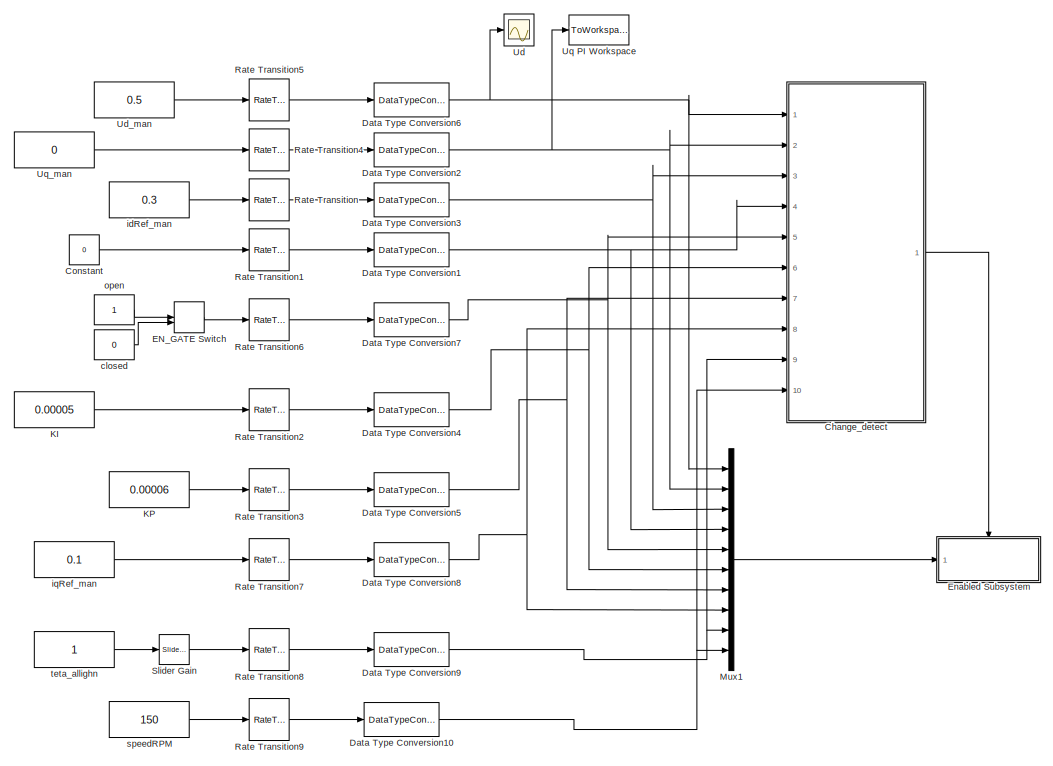
[diagram: root canvas - part 1/2, right side, full height]
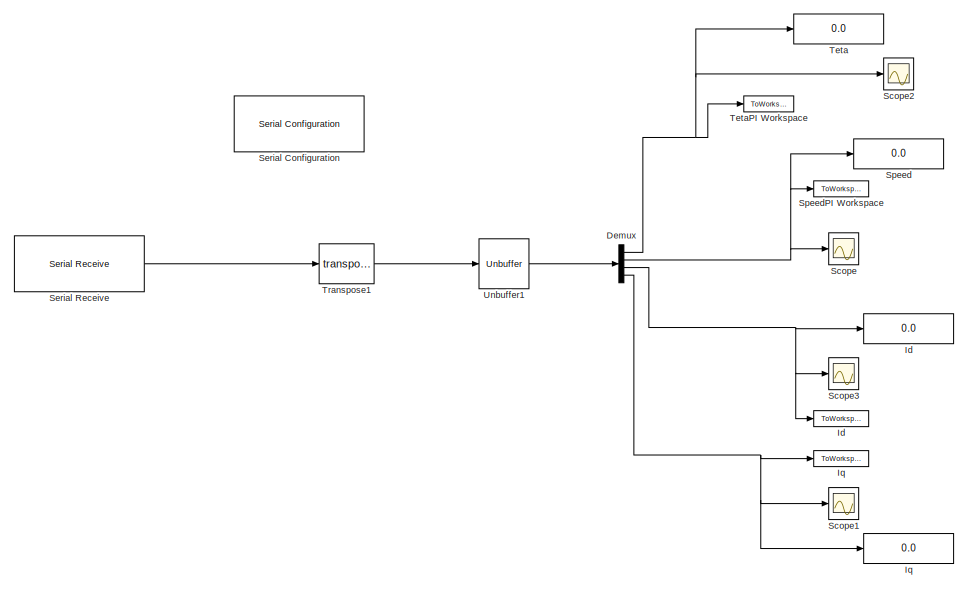
[diagram: root canvas - part 2/2, left side, full height]
MODEL slx_180a6de45c20
KIND model
CONFIG AbsTol = auto
CONFIG EnableMultiTasking = on
CONFIG FixedStep = auto
CONFIG MaxStep = auto
CONFIG MinStep = auto
CONFIG RelTol = 1e-3
CONFIG SampleTimeConstraint = Unconstrained
CONFIG Solver = FixedStepDiscrete
CONFIG SolverName = FixedStepDiscrete
CONFIG StartTime = 0.0
CONFIG StopTime = Inf
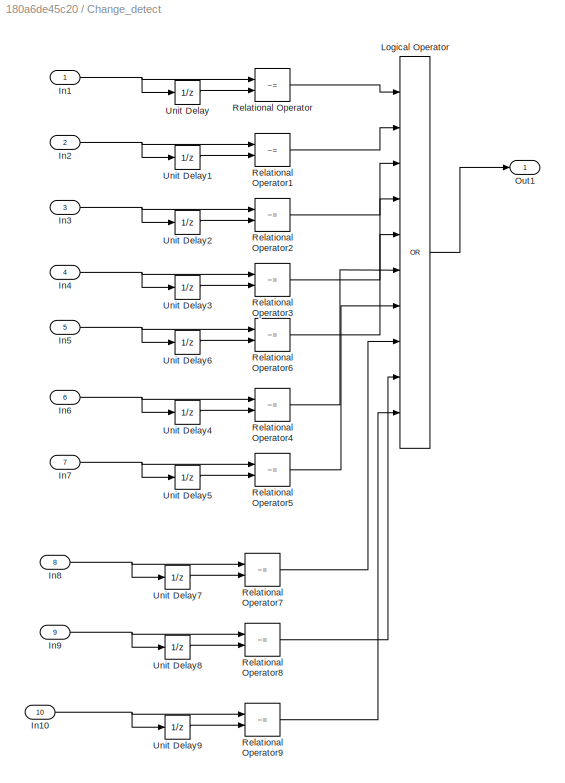
BLOCK [SubSystem] Change_detect
  Ports = [10, 1]
  RequestExecContextInheritance = off
BLOCK [Inport] Change_detect/In1
  IconDisplay = Port number
BLOCK [Inport] Change_detect/In10
  IconDisplay = Port number
  Port = 10
BLOCK [Inport] Change_detect/In2
  IconDisplay = Port number
  Port = 2
BLOCK [Inport] Change_detect/In3
  IconDisplay = Port number
  Port = 3
BLOCK [Inport] Change_detect/In4
  IconDisplay = Port number
  Port = 4
BLOCK [Inport] Change_detect/In5 
  IconDisplay = Port number
  Port = 5
BLOCK [Inport] Change_detect/In6
  IconDisplay = Port number
  Port = 6
BLOCK [Inport] Change_detect/In7
  IconDisplay = Port number
  Port = 7
BLOCK [Inport] Change_detect/In8
  IconDisplay = Port number
  Port = 8
BLOCK [Inport] Change_detect/In9
  IconDisplay = Port number
  Port = 9
BLOCK [Logic] Change_detect/Logical Operator
  AllPortsSameDT = off
  Inputs = 10
  Operator = OR
  OutDataTypeStr = boolean
  Ports = [10, 1]
BLOCK [Outport] Change_detect/Out1
  IconDisplay = Port number
BLOCK [RelationalOperator] Change_detect/Relational Operator
  InputSameDT = off
  Operator = ~=
  OutDataTypeStr = boolean
  Ports = [2, 1]
BLOCK [RelationalOperator] Change_detect/Relational Operator1
  InputSameDT = off
  Operator = ~=
  OutDataTypeStr = boolean
  Ports = [2, 1]
BLOCK [RelationalOperator] Change_detect/Relational Operator2
  InputSameDT = off
  Operator = ~=
  OutDataTypeStr = boolean
  Ports = [2, 1]
BLOCK [RelationalOperator] Change_detect/Relational Operator3
  InputSameDT = off
  Operator = ~=
  OutDataTypeStr = boolean
  Ports = [2, 1]
BLOCK [RelationalOperator] Change_detect/Relational Operator4
  InputSameDT = off
  Operator = ~=
  OutDataTypeStr = boolean
  Ports = [2, 1]
BLOCK [RelationalOperator] Change_detect/Relational Operator5
  InputSameDT = off
  Operator = ~=
  OutDataTypeStr = boolean
  Ports = [2, 1]
BLOCK [RelationalOperator] Change_detect/Relational Operator6
  InputSameDT = off
  Operator = ~=
  OutDataTypeStr = boolean
  Ports = [2, 1]
BLOCK [RelationalOperator] Change_detect/Relational Operator7
  InputSameDT = off
  Operator = ~=
  OutDataTypeStr = boolean
  Ports = [2, 1]
BLOCK [RelationalOperator] Change_detect/Relational Operator8
  InputSameDT = off
  Operator = ~=
  OutDataTypeStr = boolean
  Ports = [2, 1]
BLOCK [RelationalOperator] Change_detect/Relational Operator9
  InputSameDT = off
  Operator = ~=
  OutDataTypeStr = boolean
  Ports = [2, 1]
BLOCK [UnitDelay] Change_detect/Unit Delay
  InitialCondition = 0.5
  InputProcessing = Elements as channels (sample based)
  SampleTime = -1
BLOCK [UnitDelay] Change_detect/Unit Delay1
  InitialCondition = 0.5
  InputProcessing = Elements as channels (sample based)
  SampleTime = -1
BLOCK [UnitDelay] Change_detect/Unit Delay2
  InitialCondition = 0.5
  InputProcessing = Elements as channels (sample based)
  SampleTime = -1
BLOCK [UnitDelay] Change_detect/Unit Delay3
  InitialCondition = 0.5
  InputProcessing = Elements as channels (sample based)
  SampleTime = -1
BLOCK [UnitDelay] Change_detect/Unit Delay4
  InitialCondition = 0.5
  InputProcessing = Elements as channels (sample based)
  SampleTime = -1
BLOCK [UnitDelay] Change_detect/Unit Delay5
  InitialCondition = 0.5
  InputProcessing = Elements as channels (sample based)
  SampleTime = -1
BLOCK [UnitDelay] Change_detect/Unit Delay6
  InitialCondition = 0.5
  InputProcessing = Elements as channels (sample based)
  SampleTime = -1
BLOCK [UnitDelay] Change_detect/Unit Delay7
  InitialCondition = 0.5
  InputProcessing = Elements as channels (sample based)
  SampleTime = -1
BLOCK [UnitDelay] Change_detect/Unit Delay8
  InitialCondition = 0.5
  InputProcessing = Elements as channels (sample based)
  SampleTime = -1
BLOCK [UnitDelay] Change_detect/Unit Delay9
  InitialCondition = 0.5
  InputProcessing = Elements as channels (sample based)
  SampleTime = -1
BLOCK [Constant] Constant
  Value = 0
BLOCK [DataTypeConversion] Data Type Conversion1
  OutDataTypeStr = single
  RndMeth = Floor
  SaturateOnIntegerOverflow = off
BLOCK [DataTypeConversion] Data Type Conversion10
  OutDataTypeStr = single
  RndMeth = Floor
  SaturateOnIntegerOverflow = off
BLOCK [DataTypeConversion] Data Type Conversion2
  OutDataTypeStr = single
  RndMeth = Floor
  SaturateOnIntegerOverflow = off
BLOCK [DataTypeConversion] Data Type Conversion3
  OutDataTypeStr = single
  RndMeth = Floor
  SaturateOnIntegerOverflow = off
BLOCK [DataTypeConversion] Data Type Conversion4
  OutDataTypeStr = single
  RndMeth = Floor
  SaturateOnIntegerOverflow = off
BLOCK [DataTypeConversion] Data Type Conversion5
  OutDataTypeStr = single
  RndMeth = Floor
  SaturateOnIntegerOverflow = off
BLOCK [DataTypeConversion] Data Type Conversion6
  OutDataTypeStr = single
  RndMeth = Floor
  SaturateOnIntegerOverflow = off
BLOCK [DataTypeConversion] Data Type Conversion7
  OutDataTypeStr = single
  RndMeth = Floor
  SaturateOnIntegerOverflow = off
BLOCK [DataTypeConversion] Data Type Conversion8
  OutDataTypeStr = single
  RndMeth = Floor
  SaturateOnIntegerOverflow = off
BLOCK [DataTypeConversion] Data Type Conversion9
  OutDataTypeStr = single
  RndMeth = Floor
  SaturateOnIntegerOverflow = off
BLOCK [Demux] Demux
  DisplayOption = bar
  Ports = [1, 4]
BLOCK [ManualSwitch] EN_GATE Switch
  CurrentSetting = 0
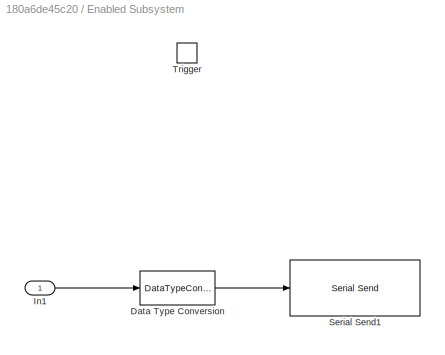
BLOCK [SubSystem] Enabled Subsystem
  Ports = [1, 0, 0, 1]
  RequestExecContextInheritance = off
  TreatAsAtomicUnit = on
BLOCK [DataTypeConversion] Enabled Subsystem/Data Type Conversion
  ConvertRealWorld = Stored Integer (SI)
  OutDataTypeStr = single
  RndMeth = Floor
  SaturateOnIntegerOverflow = off
BLOCK [Inport] Enabled Subsystem/In1
  IconDisplay = Port number
BLOCK [Reference] Enabled Subsystem/Serial Send1  REF=instrumentlib/Serial Send
  Ports = [1]
  SourceBlock = instrumentlib/Serial Send
  SourceProductBaseCode = IC
  SourceProductName = Instrument Control Toolbox
  SourceType = Serial Send
BLOCK [TriggerPort] Enabled Subsystem/Trigger
  PortDimensions = 1
  Ports = []
  StatesWhenEnabling = held
  VariantControl = Variant
BLOCK [Display] Id
  Decimation = 1
  Ports = [1]
BLOCK [ToWorkspace] Id 
  FixptAsFi = on
  MaxDataPoints = inf
  Ports = [1]
  SampleTime = -1
  Save2DSignal = 3-D array (concatenate along third dimension)
  SaveFormat = Timeseries
  VariableName = Id
BLOCK [Display] Iq
  Decimation = 1
  Ports = [1]
BLOCK [ToWorkspace] Iq 
  FixptAsFi = on
  MaxDataPoints = inf
  Ports = [1]
  SampleTime = -1
  Save2DSignal = 3-D array (concatenate along third dimension)
  SaveFormat = Timeseries
  VariableName = Iq
BLOCK [Constant] KI
  Value = 0.00005
BLOCK [Constant] KP
  Value = 0.00006
BLOCK [Mux] Mux1
  DisplayOption = bar
  Inputs = 10
  Ports = [10, 1]
BLOCK [RateTransition] Rate Transition
BLOCK [RateTransition] Rate Transition1
BLOCK [RateTransition] Rate Transition2
BLOCK [RateTransition] Rate Transition3
BLOCK [RateTransition] Rate Transition4
BLOCK [RateTransition] Rate Transition5
BLOCK [RateTransition] Rate Transition6
BLOCK [RateTransition] Rate Transition7
BLOCK [RateTransition] Rate Transition8
BLOCK [RateTransition] Rate Transition9
BLOCK [Scope] Scope
  Floating = off
  NumInputPorts = 1
  Ports = [1]
  ScopeSpecificationString = Simulink.scopes.TimeScopeBlockCfg('CurrentConfiguration', extmgr.ConfigurationSet(extmgr.Configuration('Core','General UI',true),extmgr.Configuration('Core','Source UI',true),extmgr.Configuration('Sources','WiredSimulink',true,'DataLoggingVariableName','ScopeData1'),extmgr.Configuration('Visuals','Time Domain',true,'SerializedDisplays',{struct('MinYLimReal','-14.03202','MaxYLimReal','480.61896','Y...<+1480ch>
BLOCK [Scope] Scope1
  Floating = off
  NumInputPorts = 1
  Ports = [1]
  ScopeSpecificationString = Simulink.scopes.TimeScopeBlockCfg('CurrentConfiguration', extmgr.ConfigurationSet(extmgr.Configuration('Core','General UI',true),extmgr.Configuration('Core','Source UI',true),extmgr.Configuration('Sources','WiredSimulink',true,'DataLoggingVariableName','ScopeData4'),extmgr.Configuration('Visuals','Time Domain',true),extmgr.Configuration('Tools','Plot Navigation',true),extmgr.Configuration('Tools',...<+40ch>
BLOCK [Scope] Scope2
  Floating = off
  NumInputPorts = 1
  Ports = [1]
  ScopeSpecificationString = Simulink.scopes.TimeScopeBlockCfg('CurrentConfiguration', extmgr.ConfigurationSet(extmgr.Configuration('Core','General UI',true),extmgr.Configuration('Core','Source UI',true),extmgr.Configuration('Sources','WiredSimulink',true,'DataLoggingVariableName','ScopeData2'),extmgr.Configuration('Visuals','Time Domain',true,'SerializedDisplays',{struct('MinYLimReal','-0.60314','MaxYLimReal','4.7721','YLabe...<+1435ch>
BLOCK [Scope] Scope3
  Floating = off
  NumInputPorts = 1
  Ports = [1]
  ScopeSpecificationString = Simulink.scopes.TimeScopeBlockCfg('CurrentConfiguration', extmgr.ConfigurationSet(extmgr.Configuration('Core','General UI',true),extmgr.Configuration('Core','Source UI',true),extmgr.Configuration('Sources','WiredSimulink',true,'DataLoggingVariableName','ScopeData3'),extmgr.Configuration('Visuals','Time Domain',true),extmgr.Configuration('Tools','Plot Navigation',true),extmgr.Configuration('Tools',...<+40ch>
BLOCK [Reference] Serial Configuration  REF=instrumentlib/Serial Configuration
  Ports = []
  Priority = -200000
  SourceBlock = instrumentlib/Serial Configuration
  SourceProductBaseCode = IC
  SourceProductName = Instrument Control Toolbox
  SourceType = Serial Configuration
BLOCK [Reference] Serial Receive  REF=instrumentlib/Serial Receive
  Ports = [0, 1]
  SourceBlock = instrumentlib/Serial Receive
  SourceProductBaseCode = IC
  SourceProductName = Instrument Control Toolbox
  SourceType = Serial Receive
BLOCK [Reference] Slider Gain  REF=simulink/Math
Operations/Slider
Gain
  Ports = [1, 1]
  SourceBlock = simulink/Math\nOperations/Slider\nGain
  SourceProductBaseCode = SL
  SourceProductName = Simulink
  SourceType = Slider Gain
BLOCK [Display] Speed 
  Decimation = 1
  Ports = [1]
BLOCK [ToWorkspace] SpeedPI Workspace
  FixptAsFi = on
  MaxDataPoints = inf
  Ports = [1]
  SampleTime = -1
  Save2DSignal = 3-D array (concatenate along third dimension)
  SaveFormat = Timeseries
  VariableName = Speed_PI
BLOCK [Display] Teta
  Decimation = 1
  Ports = [1]
BLOCK [ToWorkspace] TetaPI Workspace
  FixptAsFi = on
  MaxDataPoints = inf
  Ports = [1]
  SampleTime = -1
  Save2DSignal = 3-D array (concatenate along third dimension)
  SaveFormat = Timeseries
  VariableName = teta_PI
BLOCK [Math] Transpose1
  Operator = transpose
  Ports = [1, 1]
BLOCK [Scope] Ud
  Floating = off
  NumInputPorts = 1
  Ports = [1]
  ScopeSpecificationString = Simulink.scopes.TimeScopeBlockCfg('CurrentConfiguration', extmgr.ConfigurationSet(extmgr.Configuration('Core','General UI',true),extmgr.Configuration('Core','Source UI',true),extmgr.Configuration('Sources','WiredSimulink',true,'DataLoggingVariableName','ScopeData1'),extmgr.Configuration('Visuals','Time Domain',true,'SerializedDisplays',{struct('MinYLimReal','-0.125','MaxYLimReal','1.125','YLabelRe...<+1368ch>
BLOCK [Constant] Ud_man 
  Value = 0.5
BLOCK [Unbuffer] Unbuffer1
  Ports = [1, 1]
BLOCK [ToWorkspace] Uq PI Workspace
  FixptAsFi = on
  MaxDataPoints = inf
  Ports = [1]
  SampleTime = -1
  Save2DSignal = 3-D array (concatenate along third dimension)
  SaveFormat = Timeseries
  VariableName = Uq_PI
BLOCK [Constant] Uq_man
  Value = 0
BLOCK [Constant] closed 
  Value = 0
BLOCK [Constant] idRef_man 
  Value = 0.3
BLOCK [Constant] iqRef_man
  Value = 0.1
BLOCK [Constant] open
BLOCK [Constant] speedRPM
  Value = 150
BLOCK [Constant] teta_allighn
NET Change_detect/In10:1 -> Change_detect/Relational Operator9:1, Change_detect/Unit Delay9:1
NET Change_detect/In1:1 -> Change_detect/Relational Operator:1, Change_detect/Unit Delay:1
NET Change_detect/In2:1 -> Change_detect/Relational Operator1:1, Change_detect/Unit Delay1:1
NET Change_detect/In3:1 -> Change_detect/Relational Operator2:1, Change_detect/Unit Delay2:1
NET Change_detect/In4:1 -> Change_detect/Relational Operator3:1, Change_detect/Unit Delay3:1
NET Change_detect/In5 :1 -> Change_detect/Relational Operator6:1, Change_detect/Unit Delay6:1
NET Change_detect/In6:1 -> Change_detect/Relational Operator4:1, Change_detect/Unit Delay4:1
NET Change_detect/In7:1 -> Change_detect/Relational Operator5:1, Change_detect/Unit Delay5:1
NET Change_detect/In8:1 -> Change_detect/Relational Operator7:1, Change_detect/Unit Delay7:1
NET Change_detect/In9:1 -> Change_detect/Relational Operator8:1, Change_detect/Unit Delay8:1
LINE Change_detect/Logical Operator:1 -> Change_detect/Out1:1
LINE Change_detect/Relational Operator1:1 -> Change_detect/Logical Operator:2
LINE Change_detect/Relational Operator2:1 -> Change_detect/Logical Operator:3
LINE Change_detect/Relational Operator3:1 -> Change_detect/Logical Operator:4
LINE Change_detect/Relational Operator4:1 -> Change_detect/Logical Operator:6
LINE Change_detect/Relational Operator5:1 -> Change_detect/Logical Operator:7
LINE Change_detect/Relational Operator6:1 -> Change_detect/Logical Operator:5
LINE Change_detect/Relational Operator7:1 -> Change_detect/Logical Operator:8
LINE Change_detect/Relational Operator8:1 -> Change_detect/Logical Operator:9
LINE Change_detect/Relational Operator9:1 -> Change_detect/Logical Operator:10
LINE Change_detect/Relational Operator:1 -> Change_detect/Logical Operator:1
LINE Change_detect/Unit Delay1:1 -> Change_detect/Relational Operator1:2
LINE Change_detect/Unit Delay2:1 -> Change_detect/Relational Operator2:2
LINE Change_detect/Unit Delay3:1 -> Change_detect/Relational Operator3:2
LINE Change_detect/Unit Delay4:1 -> Change_detect/Relational Operator4:2
LINE Change_detect/Unit Delay5:1 -> Change_detect/Relational Operator5:2
LINE Change_detect/Unit Delay6:1 -> Change_detect/Relational Operator6:2
LINE Change_detect/Unit Delay7:1 -> Change_detect/Relational Operator7:2
LINE Change_detect/Unit Delay8:1 -> Change_detect/Relational Operator8:2
LINE Change_detect/Unit Delay9:1 -> Change_detect/Relational Operator9:2
LINE Change_detect/Unit Delay:1 -> Change_detect/Relational Operator:2
LINE Change_detect:1 -> Enabled Subsystem:trigger
LINE Constant:1 -> Rate Transition1:1
NET Data Type Conversion10:1 -> Change_detect:10, Mux1:10
NET Data Type Conversion1:1 -> Change_detect:4, Mux1:4
NET Data Type Conversion2:1 -> Change_detect:2, Mux1:2, Uq PI Workspace:1
NET Data Type Conversion3:1 -> Change_detect:3, Mux1:3
NET Data Type Conversion4:1 -> Change_detect:6, Mux1:6
NET Data Type Conversion5:1 -> Change_detect:7, Mux1:7
NET Data Type Conversion6:1 -> Change_detect:1, Mux1:1, Ud:1
NET Data Type Conversion7:1 -> Change_detect:5, Mux1:5
NET Data Type Conversion8:1 -> Change_detect:8, Mux1:8
NET Data Type Conversion9:1 -> Change_detect:9, Mux1:9
NET Demux:1 -> Scope2:1, Teta:1, TetaPI Workspace:1
NET Demux:2 -> Scope:1, Speed :1, SpeedPI Workspace:1
NET Demux:3 -> Id :1, Id:1, Scope3:1
NET Demux:4 -> Iq :1, Iq:1, Scope1:1
LINE EN_GATE Switch:1 -> Rate Transition6:1
LINE Enabled Subsystem/Data Type Conversion:1 -> Enabled Subsystem/Serial Send1:1
LINE Enabled Subsystem/In1:1 -> Enabled Subsystem/Data Type Conversion:1
LINE KI:1 -> Rate Transition2:1
LINE KP:1 -> Rate Transition3:1
LINE Mux1:1 -> Enabled Subsystem:1
LINE Rate Transition1:1 -> Data Type Conversion1:1
LINE Rate Transition2:1 -> Data Type Conversion4:1
LINE Rate Transition3:1 -> Data Type Conversion5:1
LINE Rate Transition4:1 -> Data Type Conversion2:1
LINE Rate Transition5:1 -> Data Type Conversion6:1
LINE Rate Transition6:1 -> Data Type Conversion7:1
LINE Rate Transition7:1 -> Data Type Conversion8:1
LINE Rate Transition8:1 -> Data Type Conversion9:1
LINE Rate Transition9:1 -> Data Type Conversion10:1
LINE Rate Transition:1 -> Data Type Conversion3:1
LINE Serial Receive:1 -> Transpose1:1
LINE Slider Gain:1 -> Rate Transition8:1
LINE Transpose1:1 -> Unbuffer1:1
LINE Ud_man :1 -> Rate Transition5:1
LINE Unbuffer1:1 -> Demux:1
LINE Uq_man:1 -> Rate Transition4:1
LINE closed :1 -> EN_GATE Switch:2
LINE idRef_man :1 -> Rate Transition:1
LINE iqRef_man:1 -> Rate Transition7:1
LINE open:1 -> EN_GATE Switch:1
LINE speedRPM:1 -> Rate Transition9:1
LINE teta_allighn:1 -> Slider Gain:1
note: NET lines group one-source signal fan-out (src -> all destinations, sorted); 1:1 wires keep LINE
